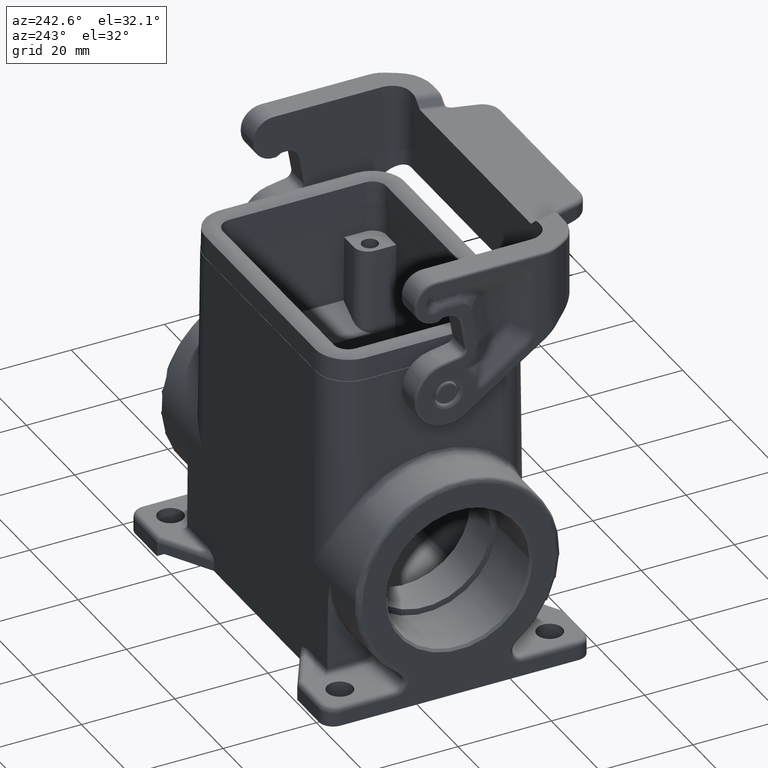
[diagram: clean part render]
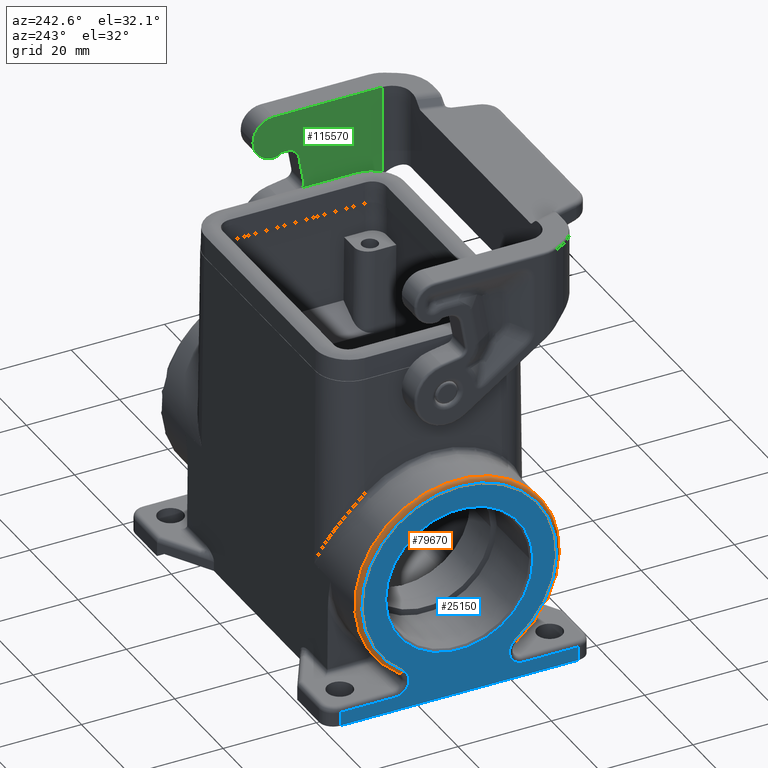
[diagram: same view with three faces highlighted in distinct colors, each labeled with its STEP entity id]
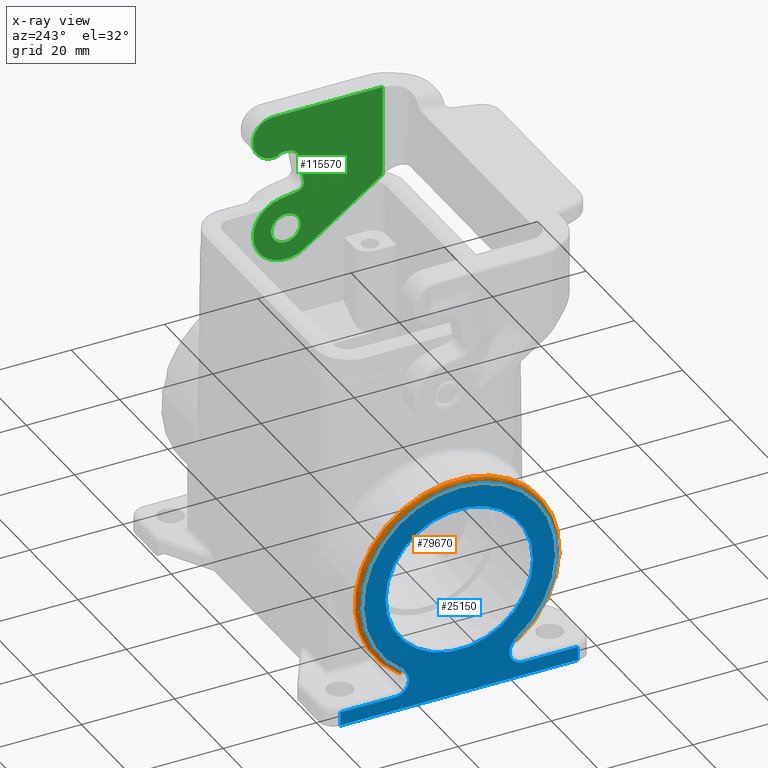
[diagram: x-ray of the same camera — body ghosted, the three highlighted faces saturated]
A machine part, auxiliary view with three faces highlighted in distinct colors.
The next image is the same camera in x-ray (body ghosted, the three faces saturated) — at least one of them is partly hidden behind the body in this view.
Their STEP definitions:

[orange] entity #79670 — the highlighted toroidal blend (fillet) surface has major radius 20.8744 mm and minor (blend) radius 1 mm.
#24600=CARTESIAN_POINT('',(75.690856,45.2943217730309,62.5496789372442))
;
#24610=VERTEX_POINT('',#24600);
#24660=CARTESIAN_POINT('',(75.690856,33.250653,45.5));
#24670=DIRECTION('',(-1.,0.,0.));
#24680=DIRECTION('',(0.,1.,1.22464679914735E-16));
#24690=AXIS2_PLACEMENT_3D('',#24660,#24670,#24680);
#24700=CIRCLE('',#24690,20.8744223723098);
#24710=CARTESIAN_POINT('',(75.690856,21.2069842269691,62.5496789372442))
;
#24720=VERTEX_POINT('',#24710);
#24730=EDGE_CURVE('',#24610,#24720,#24700,.T.);
#63290=CARTESIAN_POINT('',(74.690856,21.2069842269691,62.5496789372442))
;
#63300=DIRECTION('',(0.,-0.816773687585282,-0.576958181559409));
#63310=DIRECTION('',(1.,0.,0.));
#63320=AXIS2_PLACEMENT_3D('',#63290,#63300,#63310);
#63330=CIRCLE('',#63320,1.);
#63340=CARTESIAN_POINT('',(74.690856,20.6300260454097,63.3664526248294))
;
#63350=VERTEX_POINT('',#63340);
#63360=EDGE_CURVE('',#24720,#63350,#63330,.T.);
#63740=CARTESIAN_POINT('',(74.690856,45.8712799545903,63.3664526248294))
;
#63750=VERTEX_POINT('',#63740);
#64090=CARTESIAN_POINT('',(74.690856,45.2943217730309,62.5496789372442))
;
#64100=DIRECTION('',(0.,-0.816773687585282,0.576958181559409));
#64110=DIRECTION('',(1.,0.,0.));
#64120=AXIS2_PLACEMENT_3D('',#64090,#64100,#64110);
#64130=CIRCLE('',#64120,1.);
#64140=EDGE_CURVE('',#24610,#63750,#64130,.T.);
#64430=CARTESIAN_POINT('',(74.690856,33.250653,45.5));
#64440=DIRECTION('',(-1.,0.,0.));
#64450=DIRECTION('',(0.,1.,1.22464679914735E-16));
#64460=AXIS2_PLACEMENT_3D('',#64430,#64440,#64450);
#64470=CIRCLE('',#64460,21.8744223723098);
#64480=EDGE_CURVE('',#63750,#63350,#64470,.T.);
#79560=CARTESIAN_POINT('',(74.690856,33.250653,45.5));
#79570=DIRECTION('',(-1.,0.,0.));
#79580=DIRECTION('',(0.,1.,0.));
#79590=AXIS2_PLACEMENT_3D('',#79560,#79570,#79580);
#79600=TOROIDAL_SURFACE('',#79590,20.8744223723098,1.);
#79610=ORIENTED_EDGE('',*,*,#24730,.T.);
#79620=ORIENTED_EDGE('',*,*,#64140,.F.);
#79630=ORIENTED_EDGE('',*,*,#64480,.F.);
#79640=ORIENTED_EDGE('',*,*,#63360,.T.);
#79650=EDGE_LOOP('',(#79640,#79630,#79620,#79610));
#79660=FACE_OUTER_BOUND('',#79650,.T.);
#79670=ADVANCED_FACE('',(#79660),#79600,.T.);

[blue] entity #25150 — the highlighted planar face has unit normal (1, 0, -0).
#23490=CARTESIAN_POINT('',(75.690856,58.750653,68.));
#23500=VERTEX_POINT('',#23490);
#23530=CARTESIAN_POINT('',(75.690856,58.750653,7.19487991442668E-15));
#23540=DIRECTION('',(0.,-1.22464679914735E-16,1.));
#23550=VECTOR('',#23540,1.);
#23560=LINE('',#23530,#23550);
#23570=CARTESIAN_POINT('',(75.690856,58.750653,71.));
#23580=VERTEX_POINT('',#23570);
#23590=EDGE_CURVE('',#23500,#23580,#23560,.T.);
#24350=CARTESIAN_POINT('',(75.690856,33.250653,69.));
#24360=DIRECTION('',(-1.,0.,0.));
#24370=DIRECTION('',(0.,1.,1.22464679914735E-16));
#24380=AXIS2_PLACEMENT_3D('',#24350,#24360,#24370);
#24390=PLANE('',#24380);
#24400=CARTESIAN_POINT('',(75.690856,33.250653,45.5));
#24410=DIRECTION('',(1.,0.,0.));
#24420=DIRECTION('',(0.,-1.,0.));
#24430=AXIS2_PLACEMENT_3D('',#24400,#24410,#24420);
#24440=CIRCLE('',#24430,15.8);
#24450=CARTESIAN_POINT('',(75.690856,17.450653,45.5));
#24460=VERTEX_POINT('',#24450);
#24470=CARTESIAN_POINT('',(75.690856,49.050653,45.5));
#24480=VERTEX_POINT('',#24470);
#24490=EDGE_CURVE('',#24460,#24480,#24440,.T.);
#24500=ORIENTED_EDGE('',*,*,#24490,.F.);
#24510=EDGE_CURVE('',#24480,#24460,#24440,.T.);
#24520=ORIENTED_EDGE('',*,*,#24510,.F.);
#24530=EDGE_LOOP('',(#24520,#24500));
#24540=FACE_BOUND('',#24530,.T.);
#24550=CARTESIAN_POINT('',(75.690856,47.0251963177091,65.));
#24560=DIRECTION('',(-1.,0.,0.));
#24570=DIRECTION('',(0.,1.,1.22464679914735E-16));
#24580=AXIS2_PLACEMENT_3D('',#24550,#24560,#24570);
#24590=CIRCLE('',#24580,3.);
#24600=CARTESIAN_POINT('',(75.690856,45.2943217730309,62.5496789372442))
;
#24610=VERTEX_POINT('',#24600);
#24620=CARTESIAN_POINT('',(75.690856,47.0251963177091,68.));
#24630=VERTEX_POINT('',#24620);
#24640=EDGE_CURVE('',#24610,#24630,#24590,.T.);
#24650=ORIENTED_EDGE('',*,*,#24640,.T.);
#24660=CARTESIAN_POINT('',(75.690856,33.250653,45.5));
#24670=DIRECTION('',(-1.,0.,0.));
#24680=DIRECTION('',(0.,1.,1.22464679914735E-16));
#24690=AXIS2_PLACEMENT_3D('',#24660,#24670,#24680);
#24700=CIRCLE('',#24690,20.8744223723098);
#24710=CARTESIAN_POINT('',(75.690856,21.2069842269691,62.5496789372442))
;
#24720=VERTEX_POINT('',#24710);
#24730=EDGE_CURVE('',#24610,#24720,#24700,.T.);
#24740=ORIENTED_EDGE('',*,*,#24730,.F.);
#24750=CARTESIAN_POINT('',(75.690856,19.4761096822909,65.));
#24760=DIRECTION('',(1.,0.,0.));
#24770=DIRECTION('',(0.,-1.,-1.22464679914735E-16));
#24780=AXIS2_PLACEMENT_3D('',#24750,#24760,#24770);
#24790=CIRCLE('',#24780,3.);
#24800=CARTESIAN_POINT('',(75.690856,19.4761096822909,68.));
#24810=VERTEX_POINT('',#24800);
#24820=EDGE_CURVE('',#24720,#24810,#24790,.T.);
#24830=ORIENTED_EDGE('',*,*,#24820,.F.);
#24840=CARTESIAN_POINT('',(75.690856,-8.327598234202E-15,68.));
#24850=DIRECTION('',(0.,1.,1.22464679914735E-16));
#24860=VECTOR('',#24850,1.);
#24870=LINE('',#24840,#24860);
#24880=CARTESIAN_POINT('',(75.690856,7.75065299999999,68.));
#24890=VERTEX_POINT('',#24880);
#24900=EDGE_CURVE('',#24890,#24810,#24870,.T.);
#24910=ORIENTED_EDGE('',*,*,#24900,.T.);
#24920=CARTESIAN_POINT('',(75.690856,7.750653,9.49181238775183E-16));
#24930=DIRECTION('',(0.,-1.22464679914735E-16,1.));
#24940=VECTOR('',#24930,1.);
#24950=LINE('',#24920,#24940);
#24960=CARTESIAN_POINT('',(75.690856,7.75065299999999,71.));
#24970=VERTEX_POINT('',#24960);
#24980=EDGE_CURVE('',#24890,#24970,#24950,.T.);
#24990=ORIENTED_EDGE('',*,*,#24980,.F.);
#25000=CARTESIAN_POINT('',(75.690856,-8.69499227394621E-15,71.));
#25010=DIRECTION('',(0.,-1.,-1.22464679914735E-16));
#25020=VECTOR('',#25010,1.);
#25030=LINE('',#25000,#25020);
#25040=EDGE_CURVE('',#23580,#24970,#25030,.T.);
#25050=ORIENTED_EDGE('',*,*,#25040,.T.);
#25060=ORIENTED_EDGE('',*,*,#23590,.T.);
#25070=CARTESIAN_POINT('',(75.690856,-8.327598234202E-15,68.));
#25080=DIRECTION('',(0.,1.,1.22464679914735E-16));
#25090=VECTOR('',#25080,1.);
#25100=LINE('',#25070,#25090);
#25110=EDGE_CURVE('',#24630,#23500,#25100,.T.);
#25120=ORIENTED_EDGE('',*,*,#25110,.T.);
#25130=EDGE_LOOP('',(#25120,#25060,#25050,#24990,#24910,#24830,#24740,
#24650));
#25140=FACE_OUTER_BOUND('',#25130,.T.);
#25150=ADVANCED_FACE('',(#24540,#25140),#24390,.F.);

[green] entity #115570 — the highlighted planar face has unit normal (-1, -0, 0).
#111380=CARTESIAN_POINT('',(3.94085600000003,30.1218219107959,6.5));
#111390=VERTEX_POINT('',#111380);
#111420=CARTESIAN_POINT('',(3.94085600000003,33.250653,6.5));
#111430=DIRECTION('',(1.,-7.63386700055891E-31,1.90819582357449E-16));
#111440=DIRECTION('',(-7.09218919733434E-31,-1.,-2.83869085411726E-16));
#111450=AXIS2_PLACEMENT_3D('',#111420,#111430,#111440);
#111460=CIRCLE('',#111450,3.12883108920405);
#111470=CARTESIAN_POINT('',(3.94085600000004,36.379484089204,6.5));
#111480=VERTEX_POINT('',#111470);
#111490=EDGE_CURVE('',#111480,#111390,#111460,.T.);
#114260=CARTESIAN_POINT('',(3.940856,30.1480984447035,1.81965163003363))
;
#114270=DIRECTION('',(1.,-4.33829406266423E-16,-6.22580633402255E-15));
#114280=DIRECTION('',(-4.33829406266416E-16,-1.,1.11533447328973E-15));
#114290=AXIS2_PLACEMENT_3D('',#114260,#114270,#114280);
#114300=PLANE('',#114290);
#114310=EDGE_CURVE('',#111390,#111480,#111460,.T.);
#114320=ORIENTED_EDGE('',*,*,#114310,.F.);
#114330=ORIENTED_EDGE('',*,*,#111490,.F.);
#114340=EDGE_LOOP('',(#114330,#114320));
#114350=FACE_BOUND('',#114340,.T.);
#114360=CARTESIAN_POINT('',(3.94085600000169,367.61357698236,
249.168861991561));
#114370=DIRECTION('',(-3.92634805549568E-15,-0.819152044289058,
-0.573576436350952));
#114380=VECTOR('',#114370,1.);
#114390=LINE('',#114360,#114380);
#114400=CARTESIAN_POINT('',(3.94085600000007,29.2356179454641,
12.2340643099681));
#114410=VERTEX_POINT('',#114400);
#114420=CARTESIAN_POINT('',(3.94085599999998,12.5006529998346,
0.516115703365983));
#114430=VERTEX_POINT('',#114420);
#114440=EDGE_CURVE('',#114410,#114430,#114390,.T.);
#114450=ORIENTED_EDGE('',*,*,#114440,.T.);
#114460=CARTESIAN_POINT('',(3.94085600000003,33.2506529999206,
6.49999999994458));
#114470=DIRECTION('',(1.,-4.33829406266423E-16,-6.22580633402251E-15));
#114480=DIRECTION('',(-4.33829406266416E-16,-1.,1.11533447328973E-15));
#114490=AXIS2_PLACEMENT_3D('',#114460,#114470,#114480);
#114500=CIRCLE('',#114490,7.);
#114510=CARTESIAN_POINT('',(3.94085599999999,34.4661902435882,
-0.393654271141045));
#114520=VERTEX_POINT('',#114510);
#114530=EDGE_CURVE('',#114520,#114410,#114500,.T.);
#114540=ORIENTED_EDGE('',*,*,#114530,.T.);
#114550=CARTESIAN_POINT('',(3.9408560000005,367.61357698236,
58.3492185633813));
#114560=DIRECTION('',(-1.52379954429721E-15,-0.984807753012229,
-0.173648177666814));
#114570=VECTOR('',#114560,1.);
#114580=LINE('',#114550,#114570);
#114590=CARTESIAN_POINT('',(3.94085599999998,30.6259047467485,
-1.07080021785679));
#114600=VERTEX_POINT('',#114590);
#114610=EDGE_CURVE('',#114520,#114600,#114580,.T.);
#114620=ORIENTED_EDGE('',*,*,#114610,.F.);
#114630=CARTESIAN_POINT('',(3.94085599999998,30.8863770132488,
-2.54801184737512));
#114640=DIRECTION('',(1.,-4.33829406266423E-16,-6.22580633402252E-15));
#114650=DIRECTION('',(-6.22580633402252E-15,-1.11533447328973E-15,-1.));
#114660=AXIS2_PLACEMENT_3D('',#114630,#114640,#114650);
#114670=CIRCLE('',#114660,1.5);
#114680=CARTESIAN_POINT('',(3.94085599999998,29.4091653837304,
-2.80848411387534));
#114690=VERTEX_POINT('',#114680);
#114700=EDGE_CURVE('',#114600,#114690,#114670,.T.);
#114710=ORIENTED_EDGE('',*,*,#114700,.F.);
#114720=CARTESIAN_POINT('',(3.94085599999922,51.164995441785,
-126.191927592896));
#114730=DIRECTION('',(6.0558886606816E-15,-0.173648177666817,
0.984807753012228));
#114740=VECTOR('',#114730,1.);
#114750=LINE('',#114720,#114740);
#114760=CARTESIAN_POINT('',(3.94085599999994,30.4363822485655,
-8.63412044422304));
#114770=VERTEX_POINT('',#114760);
#114780=EDGE_CURVE('',#114770,#114690,#114750,.T.);
#114790=ORIENTED_EDGE('',*,*,#114780,.T.);
#114800=CARTESIAN_POINT('',(3.94085599999995,32.898401631096,
-8.20000000005599));
#114810=DIRECTION('',(-1.,4.33829406266423E-16,6.22580633402251E-15));
#114820=DIRECTION('',(6.22580633402251E-15,1.11533447328973E-15,1.));
#114830=AXIS2_PLACEMENT_3D('',#114800,#114810,#114820);
#114840=CIRCLE('',#114830,2.5);
#114850=CARTESIAN_POINT('',(3.94085599999993,32.898401631096,
-10.700000000056));
#114860=VERTEX_POINT('',#114850);
#114870=EDGE_CURVE('',#114860,#114770,#114840,.T.);
#114880=ORIENTED_EDGE('',*,*,#114870,.T.);
#114890=CARTESIAN_POINT('',(3.94085600000007,367.61357698236,
-10.7000000000564));
#114900=DIRECTION('',(4.33829406266416E-16,1.,-1.11533447328973E-15));
#114910=VECTOR('',#114900,1.);
#114920=LINE('',#114890,#114910);
#114930=CARTESIAN_POINT('',(3.94085599999993,33.9229102106102,
-10.700000000056));
#114940=VERTEX_POINT('',#114930);
#114950=EDGE_CURVE('',#114860,#114940,#114920,.T.);
#114960=ORIENTED_EDGE('',*,*,#114950,.F.);
#114970=CARTESIAN_POINT('',(3.94085599999993,33.9229102106102,
-9.70000000005598));
#114980=DIRECTION('',(1.,-4.33829406266429E-16,-8.98383121729892E-15));
#114990=DIRECTION('',(-8.98383121729892E-15,-1.11533447328973E-15,-1.));
#115000=AXIS2_PLACEMENT_3D('',#114970,#114980,#114990);
#115010=CIRCLE('',#115000,1.);
#115020=CARTESIAN_POINT('',(3.94085599999993,34.6140073263335,
-10.4227619087361));
#115030=VERTEX_POINT('',#115020);
#115040=EDGE_CURVE('',#114940,#115030,#115010,.T.);
#115050=ORIENTED_EDGE('',*,*,#115040,.F.);
#115060=CARTESIAN_POINT('',(3.94085599999988,35.6506529999184,
-11.5069047717564));
#115070=DIRECTION('',(1.,-4.33829406266429E-16,-8.98383121729892E-15));
#115080=DIRECTION('',(-8.98383121729892E-15,-2.81240336438558E-15,-1.));
#115090=AXIS2_PLACEMENT_3D('',#115060,#115070,#115080);
#115100=CIRCLE('',#115090,1.5);
#115110=CARTESIAN_POINT('',(3.94085599999993,35.5472047240552,
-10.0104762053955));
#115120=VERTEX_POINT('',#115110);
#115130=EDGE_CURVE('',#115120,#115030,#115100,.T.);
#115140=ORIENTED_EDGE('',*,*,#115130,.T.);
#115150=CARTESIAN_POINT('',(3.94085599999986,35.8506529999204,
-14.4000000000541));
#115160=DIRECTION('',(1.,-4.33829406266429E-16,-8.98383121729892E-15));
#115170=DIRECTION('',(-4.3382940626538E-16,-1.,1.16785132963337E-13));
#115180=AXIS2_PLACEMENT_3D('',#115150,#115160,#115170);
#115190=CIRCLE('',#115180,4.4);
#115200=CARTESIAN_POINT('',(3.9408559999999,40.2506529999204,
-14.4000000000546));
#115210=VERTEX_POINT('',#115200);
#115220=EDGE_CURVE('',#115210,#115120,#115190,.T.);
#115230=ORIENTED_EDGE('',*,*,#115220,.T.);
#115240=CARTESIAN_POINT('',(3.94085599999919,40.2506529999075,
-127.73222618257));
#115250=DIRECTION('',(6.22580633402256E-15,1.15088064072241E-13,1.));
#115260=VECTOR('',#115250,1.);
#115270=LINE('',#115240,#115260);
#115280=CARTESIAN_POINT('',(3.9408559999999,40.2506529999204,
-14.8000000000546));
#115290=VERTEX_POINT('',#115280);
#115300=EDGE_CURVE('',#115290,#115210,#115270,.T.);
#115310=ORIENTED_EDGE('',*,*,#115300,.T.);
#115320=CARTESIAN_POINT('',(3.94085599999989,35.8506529999204,
-14.8000000000541));
#115330=DIRECTION('',(-1.,4.33829406266423E-16,6.22580633402251E-15));
#115340=DIRECTION('',(4.33829406266416E-16,1.,-1.11533447328973E-15));
#115350=AXIS2_PLACEMENT_3D('',#115320,#115330,#115340);
#115360=CIRCLE('',#115350,4.4);
#115370=CARTESIAN_POINT('',(3.94085599999988,35.85065299992,
-19.2000000000541));
#115380=VERTEX_POINT('',#115370);
#115390=EDGE_CURVE('',#115290,#115380,#115360,.T.);
#115400=ORIENTED_EDGE('',*,*,#115390,.F.);
#115410=CARTESIAN_POINT('',(3.94085600000002,367.61357698236,
-19.2000000000499));
#115420=DIRECTION('',(-4.33829406266422E-16,-1.,2.66800027741806E-16));
#115430=VECTOR('',#115420,1.);
#115440=LINE('',#115410,#115430);
#115450=CARTESIAN_POINT('',(3.94085599999986,12.5006529998346,
-19.2000000000749));
#115460=VERTEX_POINT('',#115450);
#115470=EDGE_CURVE('',#115380,#115460,#115440,.T.);
#115480=ORIENTED_EDGE('',*,*,#115470,.F.);
#115490=CARTESIAN_POINT('',(3.94085599999919,12.5006529998346,
-127.73222618257));
#115500=DIRECTION('',(-6.22580633402255E-15,-2.66800027741805E-16,-1.));
#115510=VECTOR('',#115500,1.);
#115520=LINE('',#115490,#115510);
#115530=EDGE_CURVE('',#114430,#115460,#115520,.T.);
#115540=ORIENTED_EDGE('',*,*,#115530,.T.);
#115550=EDGE_LOOP('',(#115540,#115480,#115400,#115310,#115230,#115140,
#115050,#114960,#114880,#114790,#114710,#114620,#114540,#114450));
#115560=FACE_OUTER_BOUND('',#115550,.T.);
#115570=ADVANCED_FACE('',(#114350,#115560),#114300,.T.);